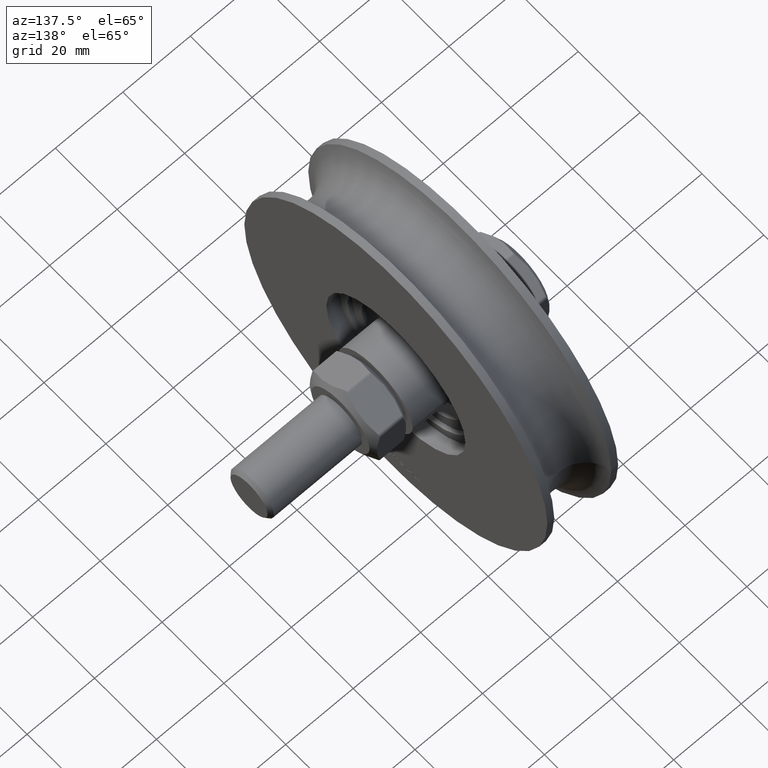
[diagram: clean part render]
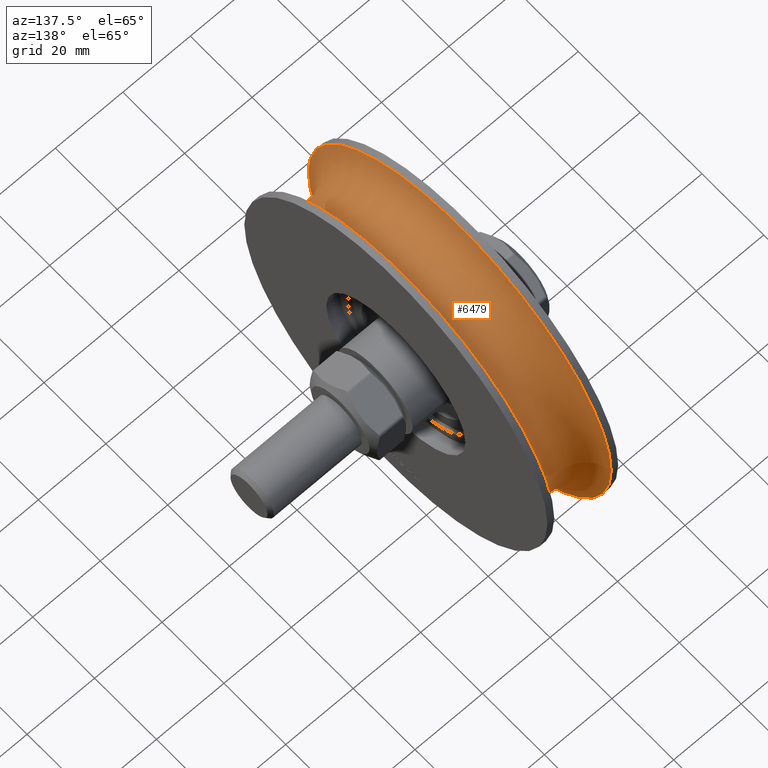
[diagram: same view with one face highlighted and labeled with its STEP entity id]
A machine part, auxiliary view. The second image highlights one B-rep face of the part: STEP entity #6479.
In plain terms, the highlighted toroidal blend (fillet) surface has major radius 50 mm and minor (blend) radius 8.5 mm.
Its self-contained STEP definition (entity closure, byte-faithful):
#662 = AXIS2_PLACEMENT_3D ( 'NONE', #2260, #5415, #4490 ) ;
#1342 = DIRECTION ( 'NONE',  ( 1.000000000000000000, 8.007305994425003256E-17, -0.000000000000000000 ) ) ;
#1561 = CARTESIAN_POINT ( 'NONE',  ( 8.440971508067070417, 1.655611856871042736E-15, 0.000000000000000000 ) ) ;
#1618 = DIRECTION ( 'NONE',  ( -7.080503983578804316E-17, 1.000000000000000000, 0.000000000000000000 ) ) ;
#2260 = CARTESIAN_POINT ( 'NONE',  ( -8.440971508067061535, 3.038230217647213109E-16, 0.000000000000000000 ) ) ;
#3388 = EDGE_LOOP ( 'NONE', ( #4423 ) ) ;
#3567 = CARTESIAN_POINT ( 'NONE',  ( 8.440971508067066864, 49.00000000000000000, 0.000000000000000000 ) ) ;
#4406 = VERTEX_POINT ( 'NONE', #13096 ) ;
#4423 = ORIENTED_EDGE ( 'NONE', *, *, #7839, .T. ) ;
#4490 = DIRECTION ( 'NONE',  ( -7.080503983578804316E-17, 1.000000000000000000, 0.000000000000000000 ) ) ;
#4730 = CIRCLE ( 'NONE', #662, 49.00000000000000000 ) ;
#5382 = VERTEX_POINT ( 'NONE', #3567 ) ;
#5415 = DIRECTION ( 'NONE',  ( 1.000000000000000000, 8.007305994425003256E-17, -0.000000000000000000 ) ) ;
#5529 = TOROIDAL_SURFACE ( 'NONE', #13502, 50.00000000000000000, 8.499999999999998224 ) ;
#5637 = CARTESIAN_POINT ( 'NONE',  ( 4.336808689942017736E-15, 0.000000000000000000, 0.000000000000000000 ) ) ;
#6479 = ADVANCED_FACE ( 'NONE', ( #11209, #12849 ), #5529, .F. ) ;
#7839 = EDGE_CURVE ( 'NONE', #4406, #4406, #4730, .T. ) ;
#8070 = EDGE_CURVE ( 'NONE', #5382, #5382, #11525, .T. ) ;
#8407 = EDGE_LOOP ( 'NONE', ( #9504 ) ) ;
#8880 = DIRECTION ( 'NONE',  ( 1.000000000000000000, 8.007305994425003256E-17, -0.000000000000000000 ) ) ;
#9089 = AXIS2_PLACEMENT_3D ( 'NONE', #1561, #8880, #1618 ) ;
#9504 = ORIENTED_EDGE ( 'NONE', *, *, #8070, .F. ) ;
#10103 = DIRECTION ( 'NONE',  ( -8.007305994425003256E-17, 1.000000000000000000, 0.000000000000000000 ) ) ;
#11209 = FACE_OUTER_BOUND ( 'NONE', #3388, .T. ) ;
#11525 = CIRCLE ( 'NONE', #9089, 49.00000000000000000 ) ;
#12849 = FACE_OUTER_BOUND ( 'NONE', #8407, .T. ) ;
#13096 = CARTESIAN_POINT ( 'NONE',  ( -8.440971508067065088, 49.00000000000000000, 0.000000000000000000 ) ) ;
#13502 = AXIS2_PLACEMENT_3D ( 'NONE', #5637, #1342, #10103 ) ;